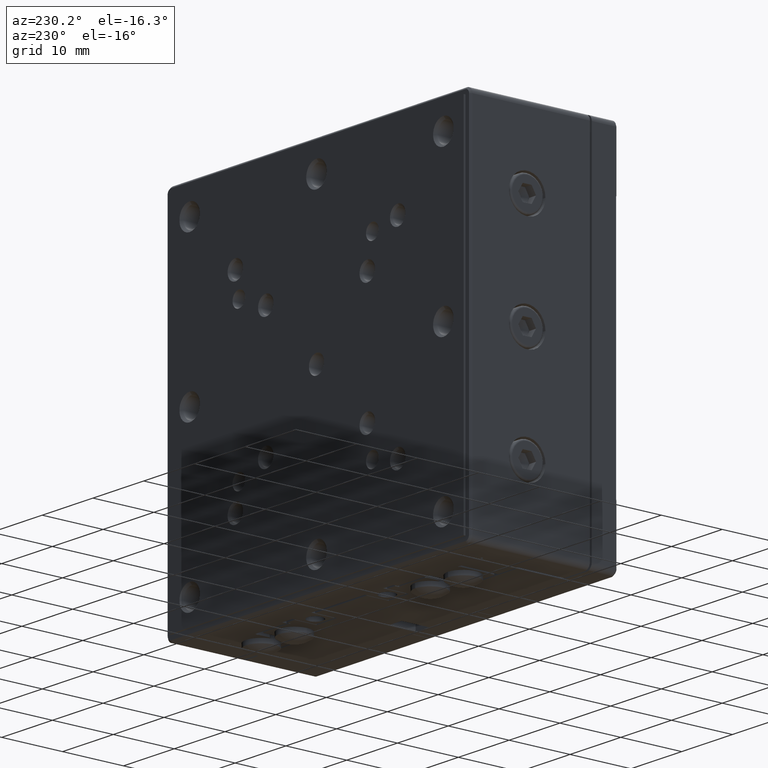
[diagram: clean part render]
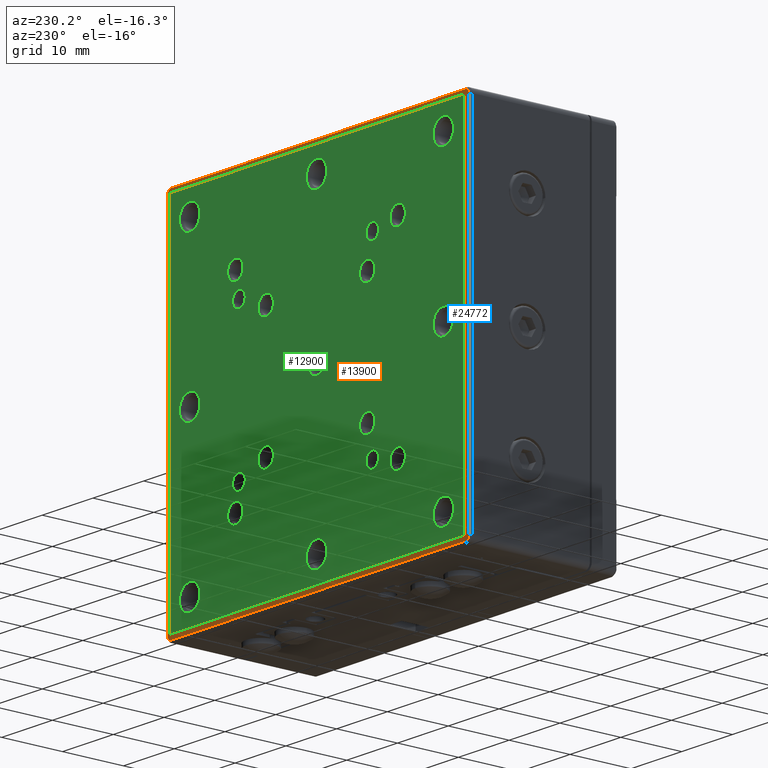
[diagram: same view with three faces highlighted in distinct colors, each labeled with its STEP entity id]
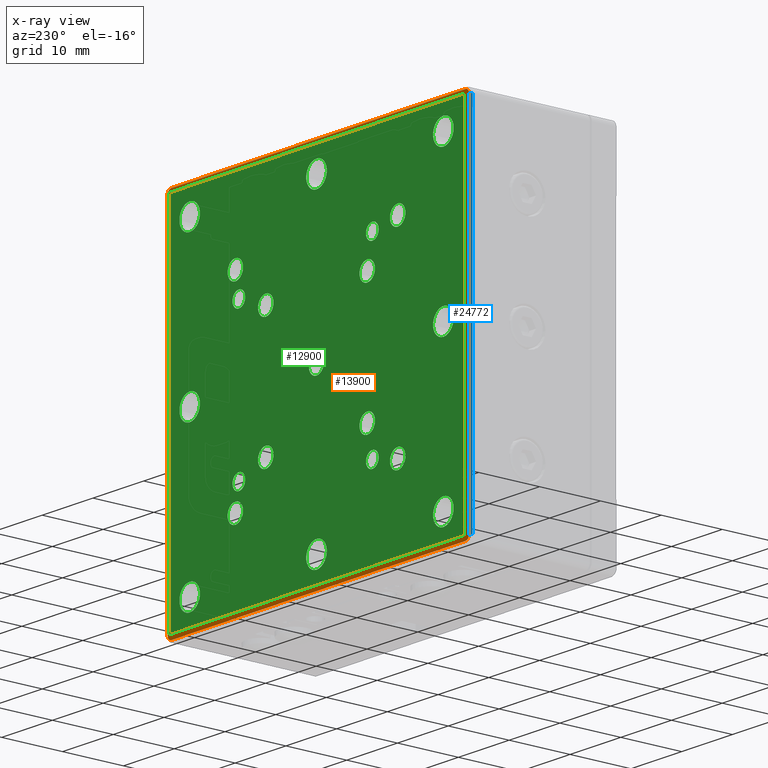
[diagram: x-ray of the same camera — body ghosted, the three highlighted faces saturated]
A machine part, auxiliary view with three faces highlighted in distinct colors.
The next image is the same camera in x-ray (body ghosted, the three faces saturated) — at least one of them is partly hidden behind the body in this view.
Their STEP definitions:

[orange] entity #13900 — the highlighted planar face has unit normal (-0, -1, 0).
#134 = VERTEX_POINT ( 'NONE', #10733 ) ;
#151 = DIRECTION ( 'NONE',  ( 1.000000000000000000, 0.000000000000000000, 0.000000000000000000 ) ) ;
#169 = CIRCLE ( 'NONE', #18708, 0.6999999999999992895 ) ;
#219 = EDGE_CURVE ( 'NONE', #21395, #17841, #2638, .T. ) ;
#227 = DIRECTION ( 'NONE',  ( 0.000000000000000000, -1.000000000000000000, 0.000000000000000000 ) ) ;
#720 = CARTESIAN_POINT ( 'NONE',  ( 1.000000000000000000, 12.00000000000000000, 1.000000000000000000 ) ) ;
#794 = EDGE_CURVE ( 'NONE', #10371, #20169, #22945, .T. ) ;
#881 = CARTESIAN_POINT ( 'NONE',  ( 1.000000000000000000, 12.00000000000000000, 1.000000000000000000 ) ) ;
#1674 = ORIENTED_EDGE ( 'NONE', *, *, #13762, .T. ) ;
#1783 = EDGE_LOOP ( 'NONE', ( #18167, #3750, #23910, #6353 ) ) ;
#1796 = CARTESIAN_POINT ( 'NONE',  ( 59.00000000000000000, 12.00000000000000000, 0.9999999999999870104 ) ) ;
#1922 = VERTEX_POINT ( 'NONE', #10463 ) ;
#2068 = ORIENTED_EDGE ( 'NONE', *, *, #9475, .T. ) ;
#2294 = EDGE_CURVE ( 'NONE', #12312, #134, #6258, .T. ) ;
#2638 = CIRCLE ( 'NONE', #5488, 0.6999999999999999556 ) ;
#2774 = DIRECTION ( 'NONE',  ( 0.000000000000000000, 0.000000000000000000, -1.000000000000000000 ) ) ;
#2841 = VECTOR ( 'NONE', #15605, 1000.000000000000000 ) ;
#2855 = LINE ( 'NONE', #720, #22497 ) ;
#3750 = ORIENTED_EDGE ( 'NONE', *, *, #14156, .F. ) ;
#3926 = VECTOR ( 'NONE', #4214, 1000.000000000000000 ) ;
#4214 = DIRECTION ( 'NONE',  ( 0.000000000000000000, 0.000000000000000000, -1.000000000000000000 ) ) ;
#5285 = ORIENTED_EDGE ( 'NONE', *, *, #13058, .T. ) ;
#5488 = AXIS2_PLACEMENT_3D ( 'NONE', #14381, #12496, #2774 ) ;
#5537 = DIRECTION ( 'NONE',  ( 0.000000000000000000, 1.000000000000000000, 0.000000000000000000 ) ) ;
#5707 = LINE ( 'NONE', #1796, #11071 ) ;
#5776 = DIRECTION ( 'NONE',  ( 0.000000000000000000, 0.000000000000000000, -1.000000000000000000 ) ) ;
#5870 = CARTESIAN_POINT ( 'NONE',  ( 59.70000000000000284, 12.00000000000000000, 1.000000000000000000 ) ) ;
#6073 = EDGE_CURVE ( 'NONE', #1922, #12312, #15426, .T. ) ;
#6074 = EDGE_CURVE ( 'NONE', #134, #20724, #5707, .T. ) ;
#6258 = LINE ( 'NONE', #23821, #2841 ) ;
#6269 = CARTESIAN_POINT ( 'NONE',  ( 59.00000000000000000, 12.00000000000000000, 0.2999999999999999889 ) ) ;
#6353 = ORIENTED_EDGE ( 'NONE', *, *, #2294, .F. ) ;
#6641 = VECTOR ( 'NONE', #151, 1000.000000000000000 ) ;
#6879 = LINE ( 'NONE', #18220, #10051 ) ;
#6933 = CARTESIAN_POINT ( 'NONE',  ( 59.00000000000000000, 12.00000000000000000, 1.000000000000000000 ) ) ;
#7090 = DIRECTION ( 'NONE',  ( 0.000000000000000000, 0.000000000000000000, -1.000000000000000000 ) ) ;
#7575 = VERTEX_POINT ( 'NONE', #6269 ) ;
#7661 = CARTESIAN_POINT ( 'NONE',  ( 59.00000000000000000, 12.00000000000000000, 59.70000000000000284 ) ) ;
#7916 = EDGE_CURVE ( 'NONE', #10357, #14363, #11793, .T. ) ;
#8231 = CARTESIAN_POINT ( 'NONE',  ( 0.000000000000000000, 12.00000000000000000, 0.2999999999999999889 ) ) ;
#8993 = CARTESIAN_POINT ( 'NONE',  ( 59.00000000000000000, 12.00000000000000000, 59.00000000000000000 ) ) ;
#9310 = ORIENTED_EDGE ( 'NONE', *, *, #20451, .T. ) ;
#9475 = EDGE_CURVE ( 'NONE', #23041, #10371, #17353, .T. ) ;
#9836 = FACE_BOUND ( 'NONE', #1783, .T. ) ;
#9891 = CARTESIAN_POINT ( 'NONE',  ( 1.000000000000000000, 12.00000000000000000, 59.00000000000000000 ) ) ;
#10051 = VECTOR ( 'NONE', #16342, 1000.000000000000000 ) ;
#10090 = CARTESIAN_POINT ( 'NONE',  ( 0.000000000000000000, 12.00000000000000000, 60.00000000000000000 ) ) ;
#10123 = CARTESIAN_POINT ( 'NONE',  ( 1.000000000000000000, 12.00000000000000000, 59.70000000000000284 ) ) ;
#10357 = VERTEX_POINT ( 'NONE', #16036 ) ;
#10371 = VERTEX_POINT ( 'NONE', #10123 ) ;
#10463 = CARTESIAN_POINT ( 'NONE',  ( 1.000000000000000000, 12.00000000000000000, 59.00000000000000000 ) ) ;
#10733 = CARTESIAN_POINT ( 'NONE',  ( 59.00000000000000000, 12.00000000000000000, 0.9999999999999870104 ) ) ;
#10814 = EDGE_CURVE ( 'NONE', #17841, #23041, #6879, .T. ) ;
#11071 = VECTOR ( 'NONE', #15312, 1000.000000000000000 ) ;
#11347 = DIRECTION ( 'NONE',  ( 0.000000000000000000, 0.000000000000000000, -1.000000000000000000 ) ) ;
#11793 = LINE ( 'NONE', #21143, #3926 ) ;
#11830 = CIRCLE ( 'NONE', #16272, 0.6999999999999999556 ) ;
#11889 = LINE ( 'NONE', #8231, #17949 ) ;
#11893 = CARTESIAN_POINT ( 'NONE',  ( 0.2999999999999999889, 12.00000000000000000, 1.000000000000000000 ) ) ;
#12312 = VERTEX_POINT ( 'NONE', #12481 ) ;
#12344 = ORIENTED_EDGE ( 'NONE', *, *, #10814, .T. ) ;
#12481 = CARTESIAN_POINT ( 'NONE',  ( 59.00000000000000000, 12.00000000000000000, 59.00000000000000000 ) ) ;
#12496 = DIRECTION ( 'NONE',  ( 0.000000000000000000, 1.000000000000000000, 0.000000000000000000 ) ) ;
#12893 = DIRECTION ( 'NONE',  ( 0.000000000000000000, 1.000000000000000000, 0.000000000000000000 ) ) ;
#13058 = EDGE_CURVE ( 'NONE', #7575, #21395, #11889, .T. ) ;
#13762 = EDGE_CURVE ( 'NONE', #14363, #7575, #11830, .T. ) ;
#13900 = ADVANCED_FACE ( 'NONE', ( #23337, #9836 ), #17645, .F. ) ;
#14156 = EDGE_CURVE ( 'NONE', #20724, #1922, #2855, .T. ) ;
#14291 = ORIENTED_EDGE ( 'NONE', *, *, #219, .T. ) ;
#14363 = VERTEX_POINT ( 'NONE', #5870 ) ;
#14381 = CARTESIAN_POINT ( 'NONE',  ( 1.000000000000000000, 12.00000000000000000, 1.000000000000000000 ) ) ;
#14670 = DIRECTION ( 'NONE',  ( 0.000000000000000000, 1.000000000000000000, 0.000000000000000000 ) ) ;
#15312 = DIRECTION ( 'NONE',  ( -1.000000000000000000, 0.000000000000000000, 1.233747299724883846E-16 ) ) ;
#15426 = LINE ( 'NONE', #9891, #6641 ) ;
#15605 = DIRECTION ( 'NONE',  ( 0.000000000000000000, 0.000000000000000000, -1.000000000000000000 ) ) ;
#16036 = CARTESIAN_POINT ( 'NONE',  ( 59.70000000000000284, 12.00000000000000000, 59.00000000000000000 ) ) ;
#16272 = AXIS2_PLACEMENT_3D ( 'NONE', #6933, #5537, #11347 ) ;
#16342 = DIRECTION ( 'NONE',  ( 0.000000000000000000, 0.000000000000000000, 1.000000000000000000 ) ) ;
#17353 = CIRCLE ( 'NONE', #18555, 0.6999999999999992895 ) ;
#17370 = CARTESIAN_POINT ( 'NONE',  ( 1.000000000000000000, 12.00000000000000000, 0.2999999999999999889 ) ) ;
#17442 = DIRECTION ( 'NONE',  ( -1.000000000000000000, 0.000000000000000000, 0.000000000000000000 ) ) ;
#17645 = PLANE ( 'NONE',  #23136 ) ;
#17841 = VERTEX_POINT ( 'NONE', #11893 ) ;
#17949 = VECTOR ( 'NONE', #17442, 1000.000000000000000 ) ;
#18167 = ORIENTED_EDGE ( 'NONE', *, *, #6073, .F. ) ;
#18220 = CARTESIAN_POINT ( 'NONE',  ( 0.2999999999999999889, 12.00000000000000000, 60.00000000000000000 ) ) ;
#18335 = ORIENTED_EDGE ( 'NONE', *, *, #794, .T. ) ;
#18555 = AXIS2_PLACEMENT_3D ( 'NONE', #22768, #14670, #20494 ) ;
#18708 = AXIS2_PLACEMENT_3D ( 'NONE', #8993, #12893, #7090 ) ;
#19136 = DIRECTION ( 'NONE',  ( 1.000000000000000000, 0.000000000000000000, 0.000000000000000000 ) ) ;
#19234 = CARTESIAN_POINT ( 'NONE',  ( 0.2999999999999999889, 12.00000000000000000, 59.00000000000000000 ) ) ;
#20116 = EDGE_LOOP ( 'NONE', ( #18335, #9310, #22861, #1674, #5285, #14291, #12344, #2068 ) ) ;
#20169 = VERTEX_POINT ( 'NONE', #22944 ) ;
#20451 = EDGE_CURVE ( 'NONE', #20169, #10357, #169, .T. ) ;
#20494 = DIRECTION ( 'NONE',  ( 0.000000000000000000, 0.000000000000000000, -1.000000000000000000 ) ) ;
#20724 = VERTEX_POINT ( 'NONE', #881 ) ;
#21143 = CARTESIAN_POINT ( 'NONE',  ( 59.70000000000000284, 12.00000000000000000, 60.00000000000000000 ) ) ;
#21395 = VERTEX_POINT ( 'NONE', #17370 ) ;
#22051 = DIRECTION ( 'NONE',  ( 1.196361017915039732E-16, 0.000000000000000000, 1.000000000000000000 ) ) ;
#22497 = VECTOR ( 'NONE', #22051, 1000.000000000000000 ) ;
#22768 = CARTESIAN_POINT ( 'NONE',  ( 1.000000000000000000, 12.00000000000000000, 59.00000000000000000 ) ) ;
#22861 = ORIENTED_EDGE ( 'NONE', *, *, #7916, .T. ) ;
#22944 = CARTESIAN_POINT ( 'NONE',  ( 59.00000000000000000, 12.00000000000000000, 59.70000000000000284 ) ) ;
#22945 = LINE ( 'NONE', #7661, #23445 ) ;
#23041 = VERTEX_POINT ( 'NONE', #19234 ) ;
#23136 = AXIS2_PLACEMENT_3D ( 'NONE', #10090, #227, #5776 ) ;
#23337 = FACE_OUTER_BOUND ( 'NONE', #20116, .T. ) ;
#23445 = VECTOR ( 'NONE', #19136, 1000.000000000000000 ) ;
#23821 = CARTESIAN_POINT ( 'NONE',  ( 59.00000000000000000, 12.00000000000000000, 59.00000000000000000 ) ) ;
#23910 = ORIENTED_EDGE ( 'NONE', *, *, #6074, .F. ) ;

[blue] entity #24772 — the highlighted planar face has unit normal (0.7071, -0.7071, -0).
#110 = CARTESIAN_POINT ( 'NONE',  ( 60.00000000000000000, 11.70000000000000107, 59.00000000000000000 ) ) ;
#312 = EDGE_CURVE ( 'NONE', #16003, #10357, #20951, .T. ) ;
#983 = VECTOR ( 'NONE', #20466, 1000.000000000000114 ) ;
#2369 = ORIENTED_EDGE ( 'NONE', *, *, #16363, .F. ) ;
#2455 = CARTESIAN_POINT ( 'NONE',  ( 60.00000000000000000, 11.70000000000000107, 60.00000000000000000 ) ) ;
#3926 = VECTOR ( 'NONE', #4214, 1000.000000000000000 ) ;
#4214 = DIRECTION ( 'NONE',  ( 0.000000000000000000, 0.000000000000000000, -1.000000000000000000 ) ) ;
#4836 = DIRECTION ( 'NONE',  ( 0.000000000000000000, 0.000000000000000000, 1.000000000000000000 ) ) ;
#5870 = CARTESIAN_POINT ( 'NONE',  ( 59.70000000000000284, 12.00000000000000000, 1.000000000000000000 ) ) ;
#6403 = VERTEX_POINT ( 'NONE', #7077 ) ;
#7077 = CARTESIAN_POINT ( 'NONE',  ( 60.00000000000000000, 11.70000000000000107, 1.000000000000000000 ) ) ;
#7104 = PLANE ( 'NONE',  #20012 ) ;
#7916 = EDGE_CURVE ( 'NONE', #10357, #14363, #11793, .T. ) ;
#10001 = VECTOR ( 'NONE', #4836, 1000.000000000000000 ) ;
#10357 = VERTEX_POINT ( 'NONE', #16036 ) ;
#11593 = DIRECTION ( 'NONE',  ( -0.7071067811865495711, 0.7071067811865455743, 0.000000000000000000 ) ) ;
#11793 = LINE ( 'NONE', #21143, #3926 ) ;
#12296 = EDGE_LOOP ( 'NONE', ( #13392, #12376, #23125, #2369 ) ) ;
#12376 = ORIENTED_EDGE ( 'NONE', *, *, #7916, .F. ) ;
#12766 = CARTESIAN_POINT ( 'NONE',  ( 60.00000000000000000, 11.70000000000000107, 1.000000000000000000 ) ) ;
#12948 = CARTESIAN_POINT ( 'NONE',  ( 60.00000000000000000, 11.70000000000000107, 59.00000000000000000 ) ) ;
#13026 = DIRECTION ( 'NONE',  ( -0.7071067811865455743, -0.7071067811865495711, 0.000000000000000000 ) ) ;
#13392 = ORIENTED_EDGE ( 'NONE', *, *, #20254, .T. ) ;
#13941 = LINE ( 'NONE', #12766, #983 ) ;
#14363 = VERTEX_POINT ( 'NONE', #5870 ) ;
#14656 = FACE_OUTER_BOUND ( 'NONE', #12296, .T. ) ;
#16003 = VERTEX_POINT ( 'NONE', #12948 ) ;
#16036 = CARTESIAN_POINT ( 'NONE',  ( 59.70000000000000284, 12.00000000000000000, 59.00000000000000000 ) ) ;
#16363 = EDGE_CURVE ( 'NONE', #6403, #16003, #19749, .T. ) ;
#19749 = LINE ( 'NONE', #2455, #10001 ) ;
#20012 = AXIS2_PLACEMENT_3D ( 'NONE', #22758, #13026, #22636 ) ;
#20254 = EDGE_CURVE ( 'NONE', #6403, #14363, #13941, .T. ) ;
#20466 = DIRECTION ( 'NONE',  ( -0.7071067811865495711, 0.7071067811865455743, 0.000000000000000000 ) ) ;
#20951 = LINE ( 'NONE', #110, #22009 ) ;
#21143 = CARTESIAN_POINT ( 'NONE',  ( 59.70000000000000284, 12.00000000000000000, 60.00000000000000000 ) ) ;
#22009 = VECTOR ( 'NONE', #11593, 1000.000000000000114 ) ;
#22636 = DIRECTION ( 'NONE',  ( -0.7071067811865494601, 0.7071067811865454633, 0.000000000000000000 ) ) ;
#22758 = CARTESIAN_POINT ( 'NONE',  ( 59.70000000000000284, 12.00000000000000000, 60.00000000000000000 ) ) ;
#23125 = ORIENTED_EDGE ( 'NONE', *, *, #312, .F. ) ;
#24772 = ADVANCED_FACE ( 'NONE', ( #14656 ), #7104, .F. ) ;

[green] entity #12900 — the highlighted planar face has unit normal (0, 1, 0).
#50 = EDGE_CURVE ( 'NONE', #5507, #9258, #1708, .T. ) ;
#194 = AXIS2_PLACEMENT_3D ( 'NONE', #12975, #24480, #5404 ) ;
#235 = DIRECTION ( 'NONE',  ( 0.000000000000000000, 1.000000000000000000, 0.000000000000000000 ) ) ;
#292 = CIRCLE ( 'NONE', #22473, 1.525000000000000355 ) ;
#349 = CARTESIAN_POINT ( 'NONE',  ( 14.69999999999999929, 12.30000000000000071, 18.00000000000000000 ) ) ;
#423 = VERTEX_POINT ( 'NONE', #3514 ) ;
#448 = CARTESIAN_POINT ( 'NONE',  ( 14.69999999999999929, 12.30000000000000071, 40.75000000000000000 ) ) ;
#457 = EDGE_CURVE ( 'NONE', #22884, #1510, #21741, .T. ) ;
#529 = DIRECTION ( 'NONE',  ( 0.000000000000000000, 1.000000000000000000, 0.000000000000000000 ) ) ;
#656 = CARTESIAN_POINT ( 'NONE',  ( 41.00000000000000000, 12.30000000000000071, 45.00000000000000000 ) ) ;
#704 = EDGE_CURVE ( 'NONE', #3229, #21325, #20657, .T. ) ;
#752 = ORIENTED_EDGE ( 'NONE', *, *, #704, .F. ) ;
#821 = CARTESIAN_POINT ( 'NONE',  ( 59.00000000000000000, 12.30000000000000071, 59.00000000000000000 ) ) ;
#836 = CARTESIAN_POINT ( 'NONE',  ( 46.00000000000000000, 12.30000000000000071, 15.52500000000000036 ) ) ;
#929 = VERTEX_POINT ( 'NONE', #448 ) ;
#997 = CARTESIAN_POINT ( 'NONE',  ( 14.00000000000000000, 12.30000000000000071, 46.00000000000000000 ) ) ;
#1052 = CIRCLE ( 'NONE', #15167, 1.250000000000001110 ) ;
#1061 = EDGE_LOOP ( 'NONE', ( #8646, #4590 ) ) ;
#1287 = VERTEX_POINT ( 'NONE', #5349 ) ;
#1372 = CIRCLE ( 'NONE', #18286, 1.524999999999998579 ) ;
#1398 = VERTEX_POINT ( 'NONE', #6100 ) ;
#1412 = EDGE_CURVE ( 'NONE', #17399, #18984, #18452, .T. ) ;
#1425 = DIRECTION ( 'NONE',  ( 1.000000000000000000, 0.000000000000000000, 0.000000000000000000 ) ) ;
#1436 = VERTEX_POINT ( 'NONE', #5722 ) ;
#1510 = VERTEX_POINT ( 'NONE', #22249 ) ;
#1708 = CIRCLE ( 'NONE', #20245, 2.024999999999999023 ) ;
#1724 = CARTESIAN_POINT ( 'NONE',  ( 5.000000000000000000, 12.30000000000000071, 7.025000000000000355 ) ) ;
#1738 = CARTESIAN_POINT ( 'NONE',  ( 20.00000000000000000, 12.30000000000000071, 21.52499999999999858 ) ) ;
#1771 = AXIS2_PLACEMENT_3D ( 'NONE', #15732, #23434, #13805 ) ;
#1838 = ORIENTED_EDGE ( 'NONE', *, *, #7192, .T. ) ;
#1931 = CARTESIAN_POINT ( 'NONE',  ( 55.00000000000000000, 12.30000000000000071, 30.00000000000000000 ) ) ;
#1977 = CIRCLE ( 'NONE', #16101, 1.500000000000001332 ) ;
#1987 = CIRCLE ( 'NONE', #6612, 2.024999999999999023 ) ;
#2051 = EDGE_CURVE ( 'NONE', #4915, #5266, #5879, .T. ) ;
#2080 = ORIENTED_EDGE ( 'NONE', *, *, #3598, .F. ) ;
#2100 = DIRECTION ( 'NONE',  ( 0.000000000000000000, 1.000000000000000000, 0.000000000000000000 ) ) ;
#2117 = DIRECTION ( 'NONE',  ( 0.000000000000000000, 0.000000000000000000, 1.000000000000000000 ) ) ;
#2135 = ORIENTED_EDGE ( 'NONE', *, *, #10884, .F. ) ;
#2265 = DIRECTION ( 'NONE',  ( 0.000000000000000000, 1.000000000000000000, 0.000000000000000000 ) ) ;
#2315 = ORIENTED_EDGE ( 'NONE', *, *, #22911, .F. ) ;
#2499 = ORIENTED_EDGE ( 'NONE', *, *, #12392, .F. ) ;
#2513 = VERTEX_POINT ( 'NONE', #18867 ) ;
#2561 = CARTESIAN_POINT ( 'NONE',  ( 40.00000000000000000, 12.30000000000000071, 38.47500000000000142 ) ) ;
#2564 = CARTESIAN_POINT ( 'NONE',  ( 20.00000000000000000, 12.30000000000000071, 20.00000000000000000 ) ) ;
#2675 = DIRECTION ( 'NONE',  ( 0.000000000000000000, 1.000000000000000000, 0.000000000000000000 ) ) ;
#2691 = ORIENTED_EDGE ( 'NONE', *, *, #19322, .F. ) ;
#2915 = ORIENTED_EDGE ( 'NONE', *, *, #5057, .T. ) ;
#2933 = ORIENTED_EDGE ( 'NONE', *, *, #21110, .F. ) ;
#3005 = ORIENTED_EDGE ( 'NONE', *, *, #6449, .F. ) ;
#3117 = LINE ( 'NONE', #4766, #19573 ) ;
#3190 = CIRCLE ( 'NONE', #9677, 2.024999999999999023 ) ;
#3229 = VERTEX_POINT ( 'NONE', #12370 ) ;
#3275 = EDGE_CURVE ( 'NONE', #21325, #3229, #13237, .T. ) ;
#3302 = ORIENTED_EDGE ( 'NONE', *, *, #13905, .F. ) ;
#3343 = AXIS2_PLACEMENT_3D ( 'NONE', #16315, #6722, #14408 ) ;
#3444 = EDGE_LOOP ( 'NONE', ( #17350, #8490 ) ) ;
#3455 = VERTEX_POINT ( 'NONE', #5916 ) ;
#3463 = EDGE_LOOP ( 'NONE', ( #3929, #10131 ) ) ;
#3514 = CARTESIAN_POINT ( 'NONE',  ( 41.00000000000000000, 12.30000000000000071, 13.75000000000000000 ) ) ;
#3548 = CARTESIAN_POINT ( 'NONE',  ( 40.00000000000000000, 12.30000000000000071, 40.00000000000000000 ) ) ;
#3598 = EDGE_CURVE ( 'NONE', #15847, #1398, #1987, .T. ) ;
#3670 = ORIENTED_EDGE ( 'NONE', *, *, #12864, .F. ) ;
#3685 = FACE_BOUND ( 'NONE', #3444, .T. ) ;
#3691 = CARTESIAN_POINT ( 'NONE',  ( 41.00000000000000000, 12.30000000000000071, 45.00000000000000000 ) ) ;
#3737 = VERTEX_POINT ( 'NONE', #5267 ) ;
#3742 = CIRCLE ( 'NONE', #12613, 1.525000000000000355 ) ;
#3807 = FACE_BOUND ( 'NONE', #7328, .T. ) ;
#3818 = AXIS2_PLACEMENT_3D ( 'NONE', #24615, #22460, #17028 ) ;
#3897 = VERTEX_POINT ( 'NONE', #1724 ) ;
#3929 = ORIENTED_EDGE ( 'NONE', *, *, #21642, .F. ) ;
#3939 = ORIENTED_EDGE ( 'NONE', *, *, #7597, .F. ) ;
#4032 = VERTEX_POINT ( 'NONE', #20924 ) ;
#4127 = CARTESIAN_POINT ( 'NONE',  ( 14.00000000000000000, 12.30000000000000071, 14.00000000000000000 ) ) ;
#4130 = CIRCLE ( 'NONE', #21083, 1.250000000000001110 ) ;
#4244 = VERTEX_POINT ( 'NONE', #12810 ) ;
#4307 = DIRECTION ( 'NONE',  ( 0.000000000000000000, 1.000000000000000000, 0.000000000000000000 ) ) ;
#4393 = DIRECTION ( 'NONE',  ( 0.000000000000000000, 0.000000000000000000, 1.000000000000000000 ) ) ;
#4500 = CARTESIAN_POINT ( 'NONE',  ( 55.00000000000000000, 12.30000000000000071, 55.00000000000000000 ) ) ;
#4573 = AXIS2_PLACEMENT_3D ( 'NONE', #15639, #235, #7941 ) ;
#4577 = CARTESIAN_POINT ( 'NONE',  ( 14.00000000000000000, 12.30000000000000071, 46.00000000000000000 ) ) ;
#4590 = ORIENTED_EDGE ( 'NONE', *, *, #13489, .F. ) ;
#4637 = DIRECTION ( 'NONE',  ( 0.000000000000000000, 0.000000000000000000, 1.000000000000000000 ) ) ;
#4663 = CIRCLE ( 'NONE', #6701, 1.524999999999998579 ) ;
#4699 = CIRCLE ( 'NONE', #20440, 1.524999999999998579 ) ;
#4766 = CARTESIAN_POINT ( 'NONE',  ( 1.000000000000000000, 12.30000000000000071, 59.00000000000000000 ) ) ;
#4783 = CIRCLE ( 'NONE', #22133, 1.250000000000001110 ) ;
#4915 = VERTEX_POINT ( 'NONE', #17432 ) ;
#4919 = DIRECTION ( 'NONE',  ( 0.000000000000000000, 1.000000000000000000, 0.000000000000000000 ) ) ;
#5057 = EDGE_CURVE ( 'NONE', #5266, #18801, #10622, .T. ) ;
#5062 = VERTEX_POINT ( 'NONE', #22106 ) ;
#5197 = VERTEX_POINT ( 'NONE', #13463 ) ;
#5266 = VERTEX_POINT ( 'NONE', #23073 ) ;
#5267 = CARTESIAN_POINT ( 'NONE',  ( 30.00000000000000000, 12.30000000000000071, 2.975000000000000089 ) ) ;
#5274 = DIRECTION ( 'NONE',  ( 0.000000000000000000, 0.000000000000000000, 1.000000000000000000 ) ) ;
#5301 = ORIENTED_EDGE ( 'NONE', *, *, #17955, .F. ) ;
#5320 = VERTEX_POINT ( 'NONE', #836 ) ;
#5336 = CARTESIAN_POINT ( 'NONE',  ( 0.000000000000000000, 12.30000000000000071, 0.000000000000000000 ) ) ;
#5341 = CARTESIAN_POINT ( 'NONE',  ( 30.00000000000000000, 12.30000000000000071, 30.00000000000000000 ) ) ;
#5349 = CARTESIAN_POINT ( 'NONE',  ( 46.00000000000000000, 12.30000000000000071, 12.47499999999999964 ) ) ;
#5404 = DIRECTION ( 'NONE',  ( 0.000000000000000000, 0.000000000000000000, 1.000000000000000000 ) ) ;
#5444 = ORIENTED_EDGE ( 'NONE', *, *, #8522, .F. ) ;
#5470 = FACE_BOUND ( 'NONE', #22048, .T. ) ;
#5507 = VERTEX_POINT ( 'NONE', #18748 ) ;
#5527 = CIRCLE ( 'NONE', #11171, 1.525000000000000355 ) ;
#5595 = FACE_BOUND ( 'NONE', #12272, .T. ) ;
#5643 = CARTESIAN_POINT ( 'NONE',  ( 59.00000000000000000, 12.30000000000000071, 0.9999999999999870104 ) ) ;
#5722 = CARTESIAN_POINT ( 'NONE',  ( 40.00000000000000000, 12.30000000000000071, 18.47499999999999787 ) ) ;
#5741 = CARTESIAN_POINT ( 'NONE',  ( 5.000000000000000000, 12.30000000000000071, 27.97500000000000142 ) ) ;
#5781 = CARTESIAN_POINT ( 'NONE',  ( 14.00000000000000000, 12.30000000000000071, 47.52499999999999858 ) ) ;
#5879 = LINE ( 'NONE', #5643, #12116 ) ;
#5916 = CARTESIAN_POINT ( 'NONE',  ( 41.00000000000000000, 12.30000000000000071, 43.75000000000000000 ) ) ;
#6042 = EDGE_CURVE ( 'NONE', #3737, #20362, #13063, .T. ) ;
#6050 = EDGE_LOOP ( 'NONE', ( #3939, #5444 ) ) ;
#6072 = AXIS2_PLACEMENT_3D ( 'NONE', #2564, #10542, #18216 ) ;
#6100 = CARTESIAN_POINT ( 'NONE',  ( 5.000000000000000000, 12.30000000000000071, 57.02499999999999858 ) ) ;
#6124 = VERTEX_POINT ( 'NONE', #13290 ) ;
#6449 = EDGE_CURVE ( 'NONE', #4244, #7872, #22823, .T. ) ;
#6485 = DIRECTION ( 'NONE',  ( 0.000000000000000000, 1.000000000000000000, 0.000000000000000000 ) ) ;
#6514 = CARTESIAN_POINT ( 'NONE',  ( 30.00000000000000000, 12.30000000000000071, 7.025000000000000355 ) ) ;
#6612 = AXIS2_PLACEMENT_3D ( 'NONE', #8559, #20284, #4637 ) ;
#6671 = AXIS2_PLACEMENT_3D ( 'NONE', #5336, #13296, #1425 ) ;
#6701 = AXIS2_PLACEMENT_3D ( 'NONE', #11450, #24731, #5274 ) ;
#6720 = DIRECTION ( 'NONE',  ( 0.000000000000000000, 1.000000000000000000, 0.000000000000000000 ) ) ;
#6722 = DIRECTION ( 'NONE',  ( 0.000000000000000000, 1.000000000000000000, 0.000000000000000000 ) ) ;
#6762 = DIRECTION ( 'NONE',  ( 0.000000000000000000, 0.000000000000000000, 1.000000000000000000 ) ) ;
#6800 = ORIENTED_EDGE ( 'NONE', *, *, #21969, .F. ) ;
#6928 = DIRECTION ( 'NONE',  ( 0.000000000000000000, 0.000000000000000000, 1.000000000000000000 ) ) ;
#6950 = EDGE_LOOP ( 'NONE', ( #21198, #5301 ) ) ;
#6953 = CARTESIAN_POINT ( 'NONE',  ( 40.00000000000000000, 12.30000000000000071, 21.52499999999999858 ) ) ;
#6967 = ORIENTED_EDGE ( 'NONE', *, *, #12156, .F. ) ;
#6972 = CIRCLE ( 'NONE', #19057, 1.524999999999998579 ) ;
#6980 = AXIS2_PLACEMENT_3D ( 'NONE', #20214, #6485, #8238 ) ;
#7012 = EDGE_LOOP ( 'NONE', ( #13136, #22838 ) ) ;
#7192 = EDGE_CURVE ( 'NONE', #18801, #14499, #3117, .T. ) ;
#7307 = CARTESIAN_POINT ( 'NONE',  ( 20.00000000000000000, 12.30000000000000071, 40.00000000000000000 ) ) ;
#7328 = EDGE_LOOP ( 'NONE', ( #2315, #2933 ) ) ;
#7362 = EDGE_CURVE ( 'NONE', #8126, #8420, #4663, .T. ) ;
#7366 = FACE_BOUND ( 'NONE', #14572, .T. ) ;
#7379 = EDGE_LOOP ( 'NONE', ( #6967, #9093 ) ) ;
#7445 = EDGE_CURVE ( 'NONE', #7872, #4244, #7902, .T. ) ;
#7490 = FACE_BOUND ( 'NONE', #12427, .T. ) ;
#7597 = EDGE_CURVE ( 'NONE', #5320, #1287, #292, .T. ) ;
#7623 = CARTESIAN_POINT ( 'NONE',  ( 5.000000000000000000, 12.30000000000000071, 5.000000000000000000 ) ) ;
#7624 = DIRECTION ( 'NONE',  ( 0.000000000000000000, 1.000000000000000000, 0.000000000000000000 ) ) ;
#7675 = DIRECTION ( 'NONE',  ( 0.000000000000000000, 0.000000000000000000, 1.000000000000000000 ) ) ;
#7872 = VERTEX_POINT ( 'NONE', #13071 ) ;
#7902 = CIRCLE ( 'NONE', #8700, 1.524999999999998579 ) ;
#7941 = DIRECTION ( 'NONE',  ( 0.000000000000000000, 0.000000000000000000, 1.000000000000000000 ) ) ;
#8116 = DIRECTION ( 'NONE',  ( 0.000000000000000000, 1.000000000000000000, 0.000000000000000000 ) ) ;
#8126 = VERTEX_POINT ( 'NONE', #2561 ) ;
#8238 = DIRECTION ( 'NONE',  ( 0.000000000000000000, 0.000000000000000000, 1.000000000000000000 ) ) ;
#8244 = CARTESIAN_POINT ( 'NONE',  ( 55.00000000000000000, 12.30000000000000071, 57.02499999999999858 ) ) ;
#8298 = AXIS2_PLACEMENT_3D ( 'NONE', #20095, #21756, #19603 ) ;
#8420 = VERTEX_POINT ( 'NONE', #11887 ) ;
#8490 = ORIENTED_EDGE ( 'NONE', *, *, #7362, .F. ) ;
#8522 = EDGE_CURVE ( 'NONE', #1287, #5320, #5527, .T. ) ;
#8559 = CARTESIAN_POINT ( 'NONE',  ( 5.000000000000000000, 12.30000000000000071, 55.00000000000000000 ) ) ;
#8646 = ORIENTED_EDGE ( 'NONE', *, *, #21020, .F. ) ;
#8648 = AXIS2_PLACEMENT_3D ( 'NONE', #19561, #13867, #13623 ) ;
#8649 = EDGE_CURVE ( 'NONE', #5062, #18901, #4699, .T. ) ;
#8700 = AXIS2_PLACEMENT_3D ( 'NONE', #7307, #9332, #22698 ) ;
#8778 = DIRECTION ( 'NONE',  ( 0.000000000000000000, 1.000000000000000000, 0.000000000000000000 ) ) ;
#9010 = CARTESIAN_POINT ( 'NONE',  ( 30.00000000000000000, 12.30000000000000071, 5.000000000000000000 ) ) ;
#9093 = ORIENTED_EDGE ( 'NONE', *, *, #19491, .F. ) ;
#9138 = DIRECTION ( 'NONE',  ( 0.000000000000000000, 1.000000000000000000, 0.000000000000000000 ) ) ;
#9144 = FACE_BOUND ( 'NONE', #1061, .T. ) ;
#9168 = CARTESIAN_POINT ( 'NONE',  ( 41.00000000000000000, 12.30000000000000071, 46.25000000000000000 ) ) ;
#9189 = DIRECTION ( 'NONE',  ( 0.000000000000000000, 1.000000000000000000, 0.000000000000000000 ) ) ;
#9219 = CARTESIAN_POINT ( 'NONE',  ( 41.00000000000000000, 12.30000000000000071, 16.25000000000000000 ) ) ;
#9257 = CIRCLE ( 'NONE', #12865, 2.024999999999999911 ) ;
#9258 = VERTEX_POINT ( 'NONE', #5741 ) ;
#9332 = DIRECTION ( 'NONE',  ( 0.000000000000000000, 1.000000000000000000, 0.000000000000000000 ) ) ;
#9389 = FACE_BOUND ( 'NONE', #15899, .T. ) ;
#9410 = EDGE_CURVE ( 'NONE', #13757, #15545, #24213, .T. ) ;
#9462 = CARTESIAN_POINT ( 'NONE',  ( 20.00000000000000000, 12.30000000000000071, 18.47499999999999787 ) ) ;
#9651 = FACE_BOUND ( 'NONE', #19827, .T. ) ;
#9656 = DIRECTION ( 'NONE',  ( 0.000000000000000000, 0.000000000000000000, 1.000000000000000000 ) ) ;
#9677 = AXIS2_PLACEMENT_3D ( 'NONE', #1931, #8116, #21615 ) ;
#9734 = ORIENTED_EDGE ( 'NONE', *, *, #2051, .T. ) ;
#10094 = DIRECTION ( 'NONE',  ( 0.000000000000000000, 0.000000000000000000, 1.000000000000000000 ) ) ;
#10098 = CARTESIAN_POINT ( 'NONE',  ( 55.00000000000000000, 12.30000000000000071, 32.02499999999999858 ) ) ;
#10131 = ORIENTED_EDGE ( 'NONE', *, *, #9410, .F. ) ;
#10159 = DIRECTION ( 'NONE',  ( 0.000000000000000000, 1.000000000000000000, 0.000000000000000000 ) ) ;
#10284 = EDGE_LOOP ( 'NONE', ( #2499, #22384 ) ) ;
#10364 = AXIS2_PLACEMENT_3D ( 'NONE', #20767, #18742, #22544 ) ;
#10542 = DIRECTION ( 'NONE',  ( 0.000000000000000000, 1.000000000000000000, 0.000000000000000000 ) ) ;
#10622 = LINE ( 'NONE', #10744, #12623 ) ;
#10697 = CARTESIAN_POINT ( 'NONE',  ( 55.00000000000000000, 12.30000000000000071, 5.000000000000000000 ) ) ;
#10744 = CARTESIAN_POINT ( 'NONE',  ( 1.000000000000000000, 12.30000000000000071, 1.000000000000000000 ) ) ;
#10764 = VERTEX_POINT ( 'NONE', #12292 ) ;
#10810 = AXIS2_PLACEMENT_3D ( 'NONE', #11898, #21498, #23152 ) ;
#10828 = CARTESIAN_POINT ( 'NONE',  ( 55.00000000000000000, 12.30000000000000071, 52.97500000000000142 ) ) ;
#10884 = EDGE_CURVE ( 'NONE', #4032, #19202, #1977, .T. ) ;
#10979 = EDGE_CURVE ( 'NONE', #3897, #20396, #14083, .T. ) ;
#11080 = CIRCLE ( 'NONE', #3818, 2.024999999999999023 ) ;
#11119 = EDGE_CURVE ( 'NONE', #18984, #17399, #3190, .T. ) ;
#11149 = DIRECTION ( 'NONE',  ( 0.000000000000000000, 0.000000000000000000, 1.000000000000000000 ) ) ;
#11156 = DIRECTION ( 'NONE',  ( 0.000000000000000000, 0.000000000000000000, 1.000000000000000000 ) ) ;
#11171 = AXIS2_PLACEMENT_3D ( 'NONE', #22324, #4307, #17813 ) ;
#11207 = ORIENTED_EDGE ( 'NONE', *, *, #50, .F. ) ;
#11279 = FACE_BOUND ( 'NONE', #22867, .T. ) ;
#11284 = EDGE_LOOP ( 'NONE', ( #12148, #3670 ) ) ;
#11450 = CARTESIAN_POINT ( 'NONE',  ( 40.00000000000000000, 12.30000000000000071, 40.00000000000000000 ) ) ;
#11515 = FACE_BOUND ( 'NONE', #11284, .T. ) ;
#11604 = ORIENTED_EDGE ( 'NONE', *, *, #3275, .F. ) ;
#11771 = DIRECTION ( 'NONE',  ( 0.000000000000000000, 0.000000000000000000, 1.000000000000000000 ) ) ;
#11833 = ORIENTED_EDGE ( 'NONE', *, *, #1412, .F. ) ;
#11852 = ORIENTED_EDGE ( 'NONE', *, *, #24173, .F. ) ;
#11887 = CARTESIAN_POINT ( 'NONE',  ( 40.00000000000000000, 12.30000000000000071, 41.52499999999999858 ) ) ;
#11898 = CARTESIAN_POINT ( 'NONE',  ( 55.00000000000000000, 12.30000000000000071, 30.00000000000000000 ) ) ;
#11940 = VERTEX_POINT ( 'NONE', #6953 ) ;
#11964 = DIRECTION ( 'NONE',  ( 0.000000000000000000, 1.000000000000000000, 0.000000000000000000 ) ) ;
#12116 = VECTOR ( 'NONE', #15367, 1000.000000000000000 ) ;
#12148 = ORIENTED_EDGE ( 'NONE', *, *, #12379, .F. ) ;
#12156 = EDGE_CURVE ( 'NONE', #2513, #24628, #16719, .T. ) ;
#12272 = EDGE_LOOP ( 'NONE', ( #18176, #2080 ) ) ;
#12292 = CARTESIAN_POINT ( 'NONE',  ( 55.00000000000000000, 12.30000000000000071, 2.975000000000000089 ) ) ;
#12370 = CARTESIAN_POINT ( 'NONE',  ( 30.00000000000000000, 12.30000000000000071, 57.02499999999999858 ) ) ;
#12379 = EDGE_CURVE ( 'NONE', #21978, #20097, #11080, .T. ) ;
#12392 = EDGE_CURVE ( 'NONE', #20362, #3737, #18754, .T. ) ;
#12427 = EDGE_LOOP ( 'NONE', ( #16016, #2135 ) ) ;
#12572 = CARTESIAN_POINT ( 'NONE',  ( 5.000000000000000000, 12.30000000000000071, 52.97500000000000142 ) ) ;
#12613 = AXIS2_PLACEMENT_3D ( 'NONE', #13660, #24934, #21124 ) ;
#12623 = VECTOR ( 'NONE', #18303, 1000.000000000000000 ) ;
#12662 = AXIS2_PLACEMENT_3D ( 'NONE', #9010, #9138, #22516 ) ;
#12740 = AXIS2_PLACEMENT_3D ( 'NONE', #18676, #4919, #16303 ) ;
#12777 = ORIENTED_EDGE ( 'NONE', *, *, #15333, .F. ) ;
#12810 = CARTESIAN_POINT ( 'NONE',  ( 20.00000000000000000, 12.30000000000000071, 38.47500000000000142 ) ) ;
#12812 = CIRCLE ( 'NONE', #24872, 2.024999999999999023 ) ;
#12824 = DIRECTION ( 'NONE',  ( 0.000000000000000000, 1.000000000000000000, 0.000000000000000000 ) ) ;
#12864 = EDGE_CURVE ( 'NONE', #20097, #21978, #17544, .T. ) ;
#12865 = AXIS2_PLACEMENT_3D ( 'NONE', #21557, #13722, #10094 ) ;
#12900 = ADVANCED_FACE ( 'NONE', ( #19089, #17205, #9144, #9389, #3807, #7490, #5470, #9651, #11515, #7366, #13173, #5595, #20623, #12916, #16966, #11279, #18969, #15189, #20999, #24415, #24802, #3685 ), #22900, .T. ) ;
#12916 = FACE_BOUND ( 'NONE', #10284, .T. ) ;
#12975 = CARTESIAN_POINT ( 'NONE',  ( 30.00000000000000000, 12.30000000000000071, 5.000000000000000000 ) ) ;
#12987 = AXIS2_PLACEMENT_3D ( 'NONE', #23066, #9189, #20918 ) ;
#13035 = CIRCLE ( 'NONE', #18670, 1.250000000000001110 ) ;
#13043 = DIRECTION ( 'NONE',  ( 0.000000000000000000, 1.000000000000000000, 0.000000000000000000 ) ) ;
#13063 = CIRCLE ( 'NONE', #12662, 2.024999999999999911 ) ;
#13071 = CARTESIAN_POINT ( 'NONE',  ( 20.00000000000000000, 12.30000000000000071, 41.52499999999999858 ) ) ;
#13136 = ORIENTED_EDGE ( 'NONE', *, *, #20371, .F. ) ;
#13173 = FACE_BOUND ( 'NONE', #17738, .T. ) ;
#13217 = VECTOR ( 'NONE', #15083, 1000.000000000000000 ) ;
#13237 = CIRCLE ( 'NONE', #19321, 2.024999999999999023 ) ;
#13290 = CARTESIAN_POINT ( 'NONE',  ( 14.69999999999999929, 12.30000000000000071, 19.25000000000000000 ) ) ;
#13296 = DIRECTION ( 'NONE',  ( -0.000000000000000000, 1.000000000000000000, 0.000000000000000000 ) ) ;
#13303 = CARTESIAN_POINT ( 'NONE',  ( 40.00000000000000000, 12.30000000000000071, 20.00000000000000000 ) ) ;
#13463 = CARTESIAN_POINT ( 'NONE',  ( 14.69999999999999929, 12.30000000000000071, 43.25000000000000000 ) ) ;
#13477 = DIRECTION ( 'NONE',  ( 0.000000000000000000, 0.000000000000000000, 1.000000000000000000 ) ) ;
#13489 = EDGE_CURVE ( 'NONE', #929, #5197, #1052, .T. ) ;
#13535 = DIRECTION ( 'NONE',  ( 0.000000000000000000, 0.000000000000000000, 1.000000000000000000 ) ) ;
#13579 = ORIENTED_EDGE ( 'NONE', *, *, #10979, .F. ) ;
#13623 = DIRECTION ( 'NONE',  ( 0.000000000000000000, 0.000000000000000000, 1.000000000000000000 ) ) ;
#13660 = CARTESIAN_POINT ( 'NONE',  ( 14.00000000000000000, 12.30000000000000071, 14.00000000000000000 ) ) ;
#13722 = DIRECTION ( 'NONE',  ( 0.000000000000000000, 1.000000000000000000, 0.000000000000000000 ) ) ;
#13748 = EDGE_LOOP ( 'NONE', ( #22313, #3005 ) ) ;
#13757 = VERTEX_POINT ( 'NONE', #9462 ) ;
#13805 = DIRECTION ( 'NONE',  ( 0.000000000000000000, 0.000000000000000000, 1.000000000000000000 ) ) ;
#13835 = DIRECTION ( 'NONE',  ( 0.000000000000000000, 1.000000000000000000, 0.000000000000000000 ) ) ;
#13867 = DIRECTION ( 'NONE',  ( 0.000000000000000000, 1.000000000000000000, 0.000000000000000000 ) ) ;
#13905 = EDGE_CURVE ( 'NONE', #17647, #6124, #13035, .T. ) ;
#14065 = CARTESIAN_POINT ( 'NONE',  ( 14.69999999999999929, 12.30000000000000071, 16.75000000000000000 ) ) ;
#14074 = AXIS2_PLACEMENT_3D ( 'NONE', #4127, #17773, #2117 ) ;
#14083 = CIRCLE ( 'NONE', #20543, 2.024999999999999911 ) ;
#14179 = CARTESIAN_POINT ( 'NONE',  ( 30.00000000000000000, 12.30000000000000071, 30.00000000000000000 ) ) ;
#14209 = EDGE_CURVE ( 'NONE', #18616, #10764, #20066, .T. ) ;
#14376 = ORIENTED_EDGE ( 'NONE', *, *, #24657, .F. ) ;
#14408 = DIRECTION ( 'NONE',  ( 0.000000000000000000, 0.000000000000000000, 1.000000000000000000 ) ) ;
#14499 = VERTEX_POINT ( 'NONE', #821 ) ;
#14564 = DIRECTION ( 'NONE',  ( 0.000000000000000000, 0.000000000000000000, 1.000000000000000000 ) ) ;
#14572 = EDGE_LOOP ( 'NONE', ( #13579, #6800 ) ) ;
#14589 = CARTESIAN_POINT ( 'NONE',  ( 30.00000000000000000, 12.30000000000000071, 52.97500000000000142 ) ) ;
#14810 = ORIENTED_EDGE ( 'NONE', *, *, #11119, .F. ) ;
#14960 = EDGE_CURVE ( 'NONE', #24355, #3455, #4783, .T. ) ;
#15083 = DIRECTION ( 'NONE',  ( 0.000000000000000000, 0.000000000000000000, -1.000000000000000000 ) ) ;
#15139 = DIRECTION ( 'NONE',  ( 0.000000000000000000, 1.000000000000000000, 0.000000000000000000 ) ) ;
#15167 = AXIS2_PLACEMENT_3D ( 'NONE', #17416, #2265, #21460 ) ;
#15189 = FACE_BOUND ( 'NONE', #7379, .T. ) ;
#15192 = VERTEX_POINT ( 'NONE', #9219 ) ;
#15328 = DIRECTION ( 'NONE',  ( 0.000000000000000000, 1.000000000000000000, 0.000000000000000000 ) ) ;
#15333 = EDGE_CURVE ( 'NONE', #10764, #18616, #9257, .T. ) ;
#15367 = DIRECTION ( 'NONE',  ( -1.000000000000000000, 0.000000000000000000, 1.233747299724883846E-16 ) ) ;
#15448 = CIRCLE ( 'NONE', #6980, 2.024999999999999023 ) ;
#15525 = AXIS2_PLACEMENT_3D ( 'NONE', #19172, #11964, #23465 ) ;
#15545 = VERTEX_POINT ( 'NONE', #1738 ) ;
#15571 = EDGE_LOOP ( 'NONE', ( #14376, #16318 ) ) ;
#15639 = CARTESIAN_POINT ( 'NONE',  ( 41.00000000000000000, 12.30000000000000071, 15.00000000000000000 ) ) ;
#15732 = CARTESIAN_POINT ( 'NONE',  ( 40.00000000000000000, 12.30000000000000071, 20.00000000000000000 ) ) ;
#15773 = DIRECTION ( 'NONE',  ( 0.000000000000000000, 1.000000000000000000, 0.000000000000000000 ) ) ;
#15777 = CARTESIAN_POINT ( 'NONE',  ( 5.000000000000000000, 12.30000000000000071, 30.00000000000000000 ) ) ;
#15847 = VERTEX_POINT ( 'NONE', #12572 ) ;
#15899 = EDGE_LOOP ( 'NONE', ( #16532, #3302 ) ) ;
#15977 = CARTESIAN_POINT ( 'NONE',  ( 5.000000000000000000, 12.30000000000000071, 2.975000000000000089 ) ) ;
#16016 = ORIENTED_EDGE ( 'NONE', *, *, #16333, .F. ) ;
#16074 = CARTESIAN_POINT ( 'NONE',  ( 14.69999999999999929, 12.30000000000000071, 18.00000000000000000 ) ) ;
#16101 = AXIS2_PLACEMENT_3D ( 'NONE', #5341, #13043, #11156 ) ;
#16137 = DIRECTION ( 'NONE',  ( 0.000000000000000000, 1.000000000000000000, 0.000000000000000000 ) ) ;
#16247 = ORIENTED_EDGE ( 'NONE', *, *, #24428, .T. ) ;
#16303 = DIRECTION ( 'NONE',  ( 0.000000000000000000, 0.000000000000000000, 1.000000000000000000 ) ) ;
#16304 = CIRCLE ( 'NONE', #1771, 1.524999999999998579 ) ;
#16315 = CARTESIAN_POINT ( 'NONE',  ( 46.00000000000000000, 12.30000000000000071, 46.00000000000000000 ) ) ;
#16318 = ORIENTED_EDGE ( 'NONE', *, *, #8649, .F. ) ;
#16333 = EDGE_CURVE ( 'NONE', #19202, #4032, #18845, .T. ) ;
#16353 = CIRCLE ( 'NONE', #8298, 2.024999999999999911 ) ;
#16397 = DIRECTION ( 'NONE',  ( 0.000000000000000000, 1.000000000000000000, 0.000000000000000000 ) ) ;
#16532 = ORIENTED_EDGE ( 'NONE', *, *, #19439, .F. ) ;
#16719 = CIRCLE ( 'NONE', #8648, 1.524999999999998579 ) ;
#16749 = AXIS2_PLACEMENT_3D ( 'NONE', #4500, #16137, #11149 ) ;
#16782 = CIRCLE ( 'NONE', #10364, 1.250000000000001110 ) ;
#16850 = CARTESIAN_POINT ( 'NONE',  ( 20.00000000000000000, 12.30000000000000071, 20.00000000000000000 ) ) ;
#16966 = FACE_BOUND ( 'NONE', #15571, .T. ) ;
#16987 = LINE ( 'NONE', #24692, #13217 ) ;
#17028 = DIRECTION ( 'NONE',  ( 0.000000000000000000, 0.000000000000000000, 1.000000000000000000 ) ) ;
#17044 = CARTESIAN_POINT ( 'NONE',  ( 30.00000000000000000, 12.30000000000000071, 55.00000000000000000 ) ) ;
#17205 = FACE_BOUND ( 'NONE', #6950, .T. ) ;
#17350 = ORIENTED_EDGE ( 'NONE', *, *, #22278, .F. ) ;
#17399 = VERTEX_POINT ( 'NONE', #20655 ) ;
#17416 = CARTESIAN_POINT ( 'NONE',  ( 14.69999999999999929, 12.30000000000000071, 42.00000000000000000 ) ) ;
#17432 = CARTESIAN_POINT ( 'NONE',  ( 59.00000000000000000, 12.30000000000000071, 0.9999999999999870104 ) ) ;
#17544 = CIRCLE ( 'NONE', #16749, 2.024999999999999023 ) ;
#17605 = CIRCLE ( 'NONE', #19625, 1.524999999999998579 ) ;
#17647 = VERTEX_POINT ( 'NONE', #14065 ) ;
#17683 = ORIENTED_EDGE ( 'NONE', *, *, #14209, .F. ) ;
#17738 = EDGE_LOOP ( 'NONE', ( #11207, #11852 ) ) ;
#17773 = DIRECTION ( 'NONE',  ( 0.000000000000000000, 1.000000000000000000, 0.000000000000000000 ) ) ;
#17813 = DIRECTION ( 'NONE',  ( 0.000000000000000000, 0.000000000000000000, 1.000000000000000000 ) ) ;
#17919 = EDGE_CURVE ( 'NONE', #1436, #11940, #6972, .T. ) ;
#17955 = EDGE_CURVE ( 'NONE', #3455, #24355, #4130, .T. ) ;
#18176 = ORIENTED_EDGE ( 'NONE', *, *, #19462, .F. ) ;
#18216 = DIRECTION ( 'NONE',  ( 0.000000000000000000, 0.000000000000000000, 1.000000000000000000 ) ) ;
#18286 = AXIS2_PLACEMENT_3D ( 'NONE', #16850, #8778, #14564 ) ;
#18303 = DIRECTION ( 'NONE',  ( 1.196361017915039732E-16, 0.000000000000000000, 1.000000000000000000 ) ) ;
#18429 = AXIS2_PLACEMENT_3D ( 'NONE', #14179, #21773, #21641 ) ;
#18452 = CIRCLE ( 'NONE', #10810, 2.024999999999999023 ) ;
#18616 = VERTEX_POINT ( 'NONE', #21720 ) ;
#18665 = CIRCLE ( 'NONE', #21897, 1.250000000000001110 ) ;
#18670 = AXIS2_PLACEMENT_3D ( 'NONE', #349, #13835, #13477 ) ;
#18676 = CARTESIAN_POINT ( 'NONE',  ( 20.00000000000000000, 12.30000000000000071, 40.00000000000000000 ) ) ;
#18742 = DIRECTION ( 'NONE',  ( 0.000000000000000000, 1.000000000000000000, 0.000000000000000000 ) ) ;
#18748 = CARTESIAN_POINT ( 'NONE',  ( 5.000000000000000000, 12.30000000000000071, 32.02499999999999858 ) ) ;
#18754 = CIRCLE ( 'NONE', #194, 2.024999999999999911 ) ;
#18801 = VERTEX_POINT ( 'NONE', #23092 ) ;
#18845 = CIRCLE ( 'NONE', #18429, 1.500000000000001332 ) ;
#18867 = CARTESIAN_POINT ( 'NONE',  ( 46.00000000000000000, 12.30000000000000071, 47.52499999999999858 ) ) ;
#18901 = VERTEX_POINT ( 'NONE', #5781 ) ;
#18969 = FACE_BOUND ( 'NONE', #6050, .T. ) ;
#18984 = VERTEX_POINT ( 'NONE', #10098 ) ;
#18989 = CARTESIAN_POINT ( 'NONE',  ( 14.00000000000000000, 12.30000000000000071, 12.47499999999999964 ) ) ;
#19057 = AXIS2_PLACEMENT_3D ( 'NONE', #13303, #7624, #11771 ) ;
#19089 = FACE_OUTER_BOUND ( 'NONE', #24937, .T. ) ;
#19172 = CARTESIAN_POINT ( 'NONE',  ( 14.69999999999999929, 12.30000000000000071, 42.00000000000000000 ) ) ;
#19202 = VERTEX_POINT ( 'NONE', #20760 ) ;
#19259 = AXIS2_PLACEMENT_3D ( 'NONE', #10697, #12824, #20400 ) ;
#19321 = AXIS2_PLACEMENT_3D ( 'NONE', #17044, #15139, #24246 ) ;
#19322 = EDGE_CURVE ( 'NONE', #1510, #22884, #3742, .T. ) ;
#19421 = ORIENTED_EDGE ( 'NONE', *, *, #457, .F. ) ;
#19439 = EDGE_CURVE ( 'NONE', #6124, #17647, #18665, .T. ) ;
#19462 = EDGE_CURVE ( 'NONE', #1398, #15847, #15448, .T. ) ;
#19491 = EDGE_CURVE ( 'NONE', #24628, #2513, #21087, .T. ) ;
#19561 = CARTESIAN_POINT ( 'NONE',  ( 46.00000000000000000, 12.30000000000000071, 46.00000000000000000 ) ) ;
#19573 = VECTOR ( 'NONE', #23858, 1000.000000000000000 ) ;
#19603 = DIRECTION ( 'NONE',  ( 0.000000000000000000, 0.000000000000000000, 1.000000000000000000 ) ) ;
#19625 = AXIS2_PLACEMENT_3D ( 'NONE', #4577, #10159, #20222 ) ;
#19827 = EDGE_LOOP ( 'NONE', ( #14810, #11833 ) ) ;
#19890 = CIRCLE ( 'NONE', #4573, 1.250000000000001110 ) ;
#19975 = CARTESIAN_POINT ( 'NONE',  ( 46.00000000000000000, 12.30000000000000071, 44.47500000000000142 ) ) ;
#20066 = CIRCLE ( 'NONE', #19259, 2.024999999999999911 ) ;
#20095 = CARTESIAN_POINT ( 'NONE',  ( 5.000000000000000000, 12.30000000000000071, 5.000000000000000000 ) ) ;
#20097 = VERTEX_POINT ( 'NONE', #10828 ) ;
#20210 = DIRECTION ( 'NONE',  ( 0.000000000000000000, 0.000000000000000000, 1.000000000000000000 ) ) ;
#20214 = CARTESIAN_POINT ( 'NONE',  ( 5.000000000000000000, 12.30000000000000071, 55.00000000000000000 ) ) ;
#20222 = DIRECTION ( 'NONE',  ( 0.000000000000000000, 0.000000000000000000, 1.000000000000000000 ) ) ;
#20245 = AXIS2_PLACEMENT_3D ( 'NONE', #23871, #23748, #23620 ) ;
#20284 = DIRECTION ( 'NONE',  ( 0.000000000000000000, 1.000000000000000000, 0.000000000000000000 ) ) ;
#20362 = VERTEX_POINT ( 'NONE', #6514 ) ;
#20371 = EDGE_CURVE ( 'NONE', #11940, #1436, #16304, .T. ) ;
#20396 = VERTEX_POINT ( 'NONE', #15977 ) ;
#20400 = DIRECTION ( 'NONE',  ( 0.000000000000000000, 0.000000000000000000, 1.000000000000000000 ) ) ;
#20440 = AXIS2_PLACEMENT_3D ( 'NONE', #997, #16397, #6928 ) ;
#20543 = AXIS2_PLACEMENT_3D ( 'NONE', #7623, #529, #13535 ) ;
#20623 = FACE_BOUND ( 'NONE', #24805, .T. ) ;
#20655 = CARTESIAN_POINT ( 'NONE',  ( 55.00000000000000000, 12.30000000000000071, 27.97500000000000142 ) ) ;
#20657 = CIRCLE ( 'NONE', #12987, 2.024999999999999023 ) ;
#20760 = CARTESIAN_POINT ( 'NONE',  ( 30.00000000000000000, 12.30000000000000071, 31.50000000000000000 ) ) ;
#20767 = CARTESIAN_POINT ( 'NONE',  ( 41.00000000000000000, 12.30000000000000071, 15.00000000000000000 ) ) ;
#20918 = DIRECTION ( 'NONE',  ( 0.000000000000000000, 0.000000000000000000, 1.000000000000000000 ) ) ;
#20924 = CARTESIAN_POINT ( 'NONE',  ( 30.00000000000000000, 12.30000000000000071, 28.50000000000000000 ) ) ;
#20999 = FACE_BOUND ( 'NONE', #13748, .T. ) ;
#21020 = EDGE_CURVE ( 'NONE', #5197, #929, #21980, .T. ) ;
#21083 = AXIS2_PLACEMENT_3D ( 'NONE', #656, #6720, #20210 ) ;
#21087 = CIRCLE ( 'NONE', #3343, 1.524999999999998579 ) ;
#21110 = EDGE_CURVE ( 'NONE', #423, #15192, #19890, .T. ) ;
#21124 = DIRECTION ( 'NONE',  ( 0.000000000000000000, 0.000000000000000000, 1.000000000000000000 ) ) ;
#21198 = ORIENTED_EDGE ( 'NONE', *, *, #14960, .F. ) ;
#21325 = VERTEX_POINT ( 'NONE', #14589 ) ;
#21460 = DIRECTION ( 'NONE',  ( 0.000000000000000000, 0.000000000000000000, 1.000000000000000000 ) ) ;
#21498 = DIRECTION ( 'NONE',  ( 0.000000000000000000, 1.000000000000000000, 0.000000000000000000 ) ) ;
#21557 = CARTESIAN_POINT ( 'NONE',  ( 55.00000000000000000, 12.30000000000000071, 5.000000000000000000 ) ) ;
#21615 = DIRECTION ( 'NONE',  ( 0.000000000000000000, 0.000000000000000000, 1.000000000000000000 ) ) ;
#21641 = DIRECTION ( 'NONE',  ( 0.000000000000000000, 0.000000000000000000, 1.000000000000000000 ) ) ;
#21642 = EDGE_CURVE ( 'NONE', #15545, #13757, #1372, .T. ) ;
#21720 = CARTESIAN_POINT ( 'NONE',  ( 55.00000000000000000, 12.30000000000000071, 7.025000000000000355 ) ) ;
#21741 = CIRCLE ( 'NONE', #14074, 1.525000000000000355 ) ;
#21756 = DIRECTION ( 'NONE',  ( 0.000000000000000000, 1.000000000000000000, 0.000000000000000000 ) ) ;
#21773 = DIRECTION ( 'NONE',  ( 0.000000000000000000, 1.000000000000000000, 0.000000000000000000 ) ) ;
#21897 = AXIS2_PLACEMENT_3D ( 'NONE', #16074, #2675, #22247 ) ;
#21969 = EDGE_CURVE ( 'NONE', #20396, #3897, #16353, .T. ) ;
#21978 = VERTEX_POINT ( 'NONE', #8244 ) ;
#21980 = CIRCLE ( 'NONE', #15525, 1.250000000000001110 ) ;
#21992 = AXIS2_PLACEMENT_3D ( 'NONE', #3548, #15773, #4393 ) ;
#22048 = EDGE_LOOP ( 'NONE', ( #17683, #12777 ) ) ;
#22106 = CARTESIAN_POINT ( 'NONE',  ( 14.00000000000000000, 12.30000000000000071, 44.47500000000000142 ) ) ;
#22133 = AXIS2_PLACEMENT_3D ( 'NONE', #3691, #15328, #9656 ) ;
#22247 = DIRECTION ( 'NONE',  ( 0.000000000000000000, 0.000000000000000000, 1.000000000000000000 ) ) ;
#22249 = CARTESIAN_POINT ( 'NONE',  ( 14.00000000000000000, 12.30000000000000071, 15.52500000000000036 ) ) ;
#22278 = EDGE_CURVE ( 'NONE', #8420, #8126, #23212, .T. ) ;
#22313 = ORIENTED_EDGE ( 'NONE', *, *, #7445, .F. ) ;
#22324 = CARTESIAN_POINT ( 'NONE',  ( 46.00000000000000000, 12.30000000000000071, 14.00000000000000000 ) ) ;
#22384 = ORIENTED_EDGE ( 'NONE', *, *, #6042, .F. ) ;
#22460 = DIRECTION ( 'NONE',  ( 0.000000000000000000, 1.000000000000000000, 0.000000000000000000 ) ) ;
#22473 = AXIS2_PLACEMENT_3D ( 'NONE', #23076, #2100, #7675 ) ;
#22516 = DIRECTION ( 'NONE',  ( 0.000000000000000000, 0.000000000000000000, 1.000000000000000000 ) ) ;
#22544 = DIRECTION ( 'NONE',  ( 0.000000000000000000, 0.000000000000000000, 1.000000000000000000 ) ) ;
#22698 = DIRECTION ( 'NONE',  ( 0.000000000000000000, 0.000000000000000000, 1.000000000000000000 ) ) ;
#22823 = CIRCLE ( 'NONE', #12740, 1.524999999999998579 ) ;
#22838 = ORIENTED_EDGE ( 'NONE', *, *, #17919, .F. ) ;
#22867 = EDGE_LOOP ( 'NONE', ( #2691, #19421 ) ) ;
#22884 = VERTEX_POINT ( 'NONE', #18989 ) ;
#22900 = PLANE ( 'NONE',  #6671 ) ;
#22911 = EDGE_CURVE ( 'NONE', #15192, #423, #16782, .T. ) ;
#23066 = CARTESIAN_POINT ( 'NONE',  ( 30.00000000000000000, 12.30000000000000071, 55.00000000000000000 ) ) ;
#23073 = CARTESIAN_POINT ( 'NONE',  ( 1.000000000000000000, 12.30000000000000071, 1.000000000000000000 ) ) ;
#23076 = CARTESIAN_POINT ( 'NONE',  ( 46.00000000000000000, 12.30000000000000071, 14.00000000000000000 ) ) ;
#23092 = CARTESIAN_POINT ( 'NONE',  ( 1.000000000000000000, 12.30000000000000071, 59.00000000000000000 ) ) ;
#23152 = DIRECTION ( 'NONE',  ( 0.000000000000000000, 0.000000000000000000, 1.000000000000000000 ) ) ;
#23212 = CIRCLE ( 'NONE', #21992, 1.524999999999998579 ) ;
#23434 = DIRECTION ( 'NONE',  ( 0.000000000000000000, 1.000000000000000000, 0.000000000000000000 ) ) ;
#23465 = DIRECTION ( 'NONE',  ( 0.000000000000000000, 0.000000000000000000, 1.000000000000000000 ) ) ;
#23620 = DIRECTION ( 'NONE',  ( 0.000000000000000000, 0.000000000000000000, 1.000000000000000000 ) ) ;
#23748 = DIRECTION ( 'NONE',  ( 0.000000000000000000, 1.000000000000000000, 0.000000000000000000 ) ) ;
#23858 = DIRECTION ( 'NONE',  ( 1.000000000000000000, 0.000000000000000000, 0.000000000000000000 ) ) ;
#23871 = CARTESIAN_POINT ( 'NONE',  ( 5.000000000000000000, 12.30000000000000071, 30.00000000000000000 ) ) ;
#24062 = DIRECTION ( 'NONE',  ( 0.000000000000000000, 1.000000000000000000, 0.000000000000000000 ) ) ;
#24173 = EDGE_CURVE ( 'NONE', #9258, #5507, #12812, .T. ) ;
#24213 = CIRCLE ( 'NONE', #6072, 1.524999999999998579 ) ;
#24246 = DIRECTION ( 'NONE',  ( 0.000000000000000000, 0.000000000000000000, 1.000000000000000000 ) ) ;
#24355 = VERTEX_POINT ( 'NONE', #9168 ) ;
#24415 = FACE_BOUND ( 'NONE', #3463, .T. ) ;
#24428 = EDGE_CURVE ( 'NONE', #14499, #4915, #16987, .T. ) ;
#24480 = DIRECTION ( 'NONE',  ( 0.000000000000000000, 1.000000000000000000, 0.000000000000000000 ) ) ;
#24615 = CARTESIAN_POINT ( 'NONE',  ( 55.00000000000000000, 12.30000000000000071, 55.00000000000000000 ) ) ;
#24628 = VERTEX_POINT ( 'NONE', #19975 ) ;
#24657 = EDGE_CURVE ( 'NONE', #18901, #5062, #17605, .T. ) ;
#24692 = CARTESIAN_POINT ( 'NONE',  ( 59.00000000000000000, 12.30000000000000071, 59.00000000000000000 ) ) ;
#24731 = DIRECTION ( 'NONE',  ( 0.000000000000000000, 1.000000000000000000, 0.000000000000000000 ) ) ;
#24802 = FACE_BOUND ( 'NONE', #7012, .T. ) ;
#24805 = EDGE_LOOP ( 'NONE', ( #752, #11604 ) ) ;
#24872 = AXIS2_PLACEMENT_3D ( 'NONE', #15777, #24062, #6762 ) ;
#24934 = DIRECTION ( 'NONE',  ( 0.000000000000000000, 1.000000000000000000, 0.000000000000000000 ) ) ;
#24937 = EDGE_LOOP ( 'NONE', ( #1838, #16247, #9734, #2915 ) ) ;